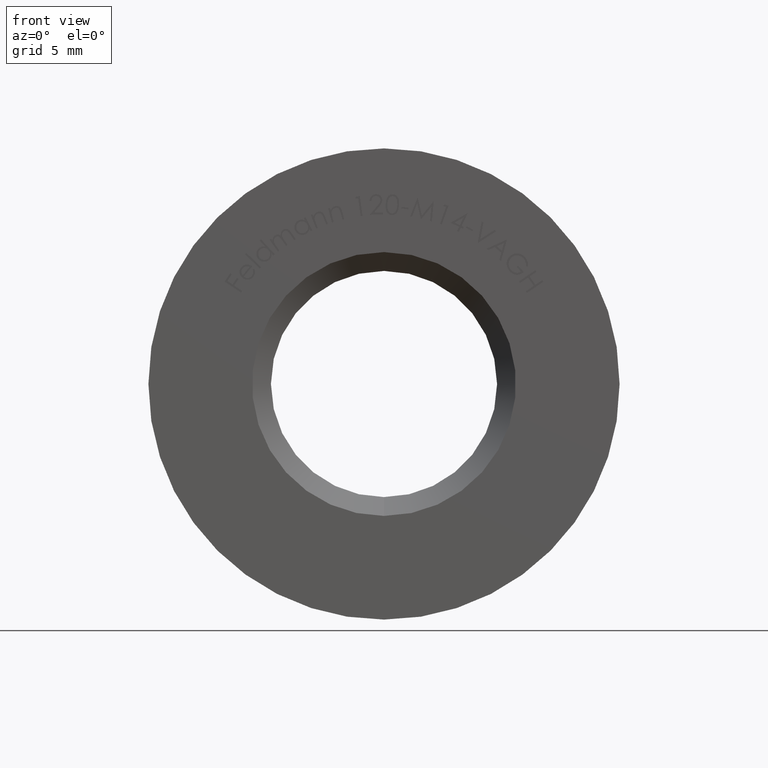
[diagram: clean part render]
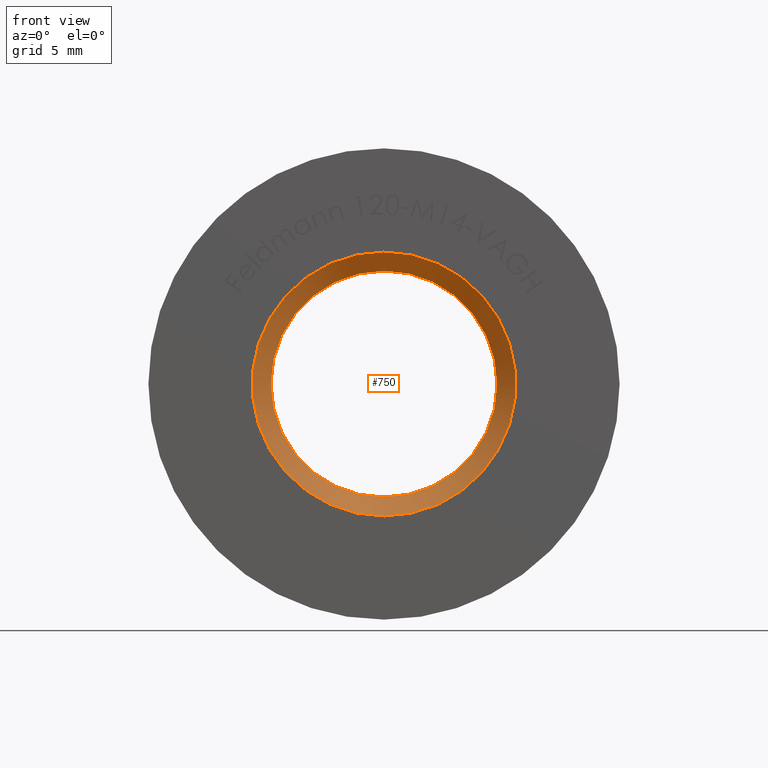
[diagram: same view with one face highlighted and labeled with its STEP entity id]
A machine part, front view. The second image highlights one B-rep face of the part: STEP entity #750.
In plain terms, the highlighted conical surface has half-angle 45 deg.
Its self-contained STEP definition (entity closure, byte-faithful):
#523 = EDGE_LOOP ( 'NONE', ( #4736 ) ) ;
#750 = ADVANCED_FACE ( 'NONE', ( #3011, #7392 ), #9226, .F. ) ;
#1232 = CARTESIAN_POINT ( 'NONE',  ( 0.0000000000000000000, 1.000000000000002700, 0.0000000000000000000 ) ) ;
#2032 = AXIS2_PLACEMENT_3D ( 'NONE', #2181, #3074, #2987 ) ;
#2181 = CARTESIAN_POINT ( 'NONE',  ( 0.0000000000000000000, -3.835467937799176700E-016, 0.0000000000000000000 ) ) ;
#2336 = VERTEX_POINT ( 'NONE', #4314 ) ;
#2987 = DIRECTION ( 'NONE',  ( 0.0000000000000000000, 0.0000000000000000000, -1.000000000000000000 ) ) ;
#3011 = FACE_OUTER_BOUND ( 'NONE', #9580, .T. ) ;
#3074 = DIRECTION ( 'NONE',  ( 0.0000000000000000000, 1.000000000000000000, 0.0000000000000000000 ) ) ;
#3120 = DIRECTION ( 'NONE',  ( 0.0000000000000000000, 0.0000000000000000000, -1.000000000000000000 ) ) ;
#3495 = ORIENTED_EDGE ( 'NONE', *, *, #11072, .F. ) ;
#4314 = CARTESIAN_POINT ( 'NONE',  ( 0.0000000000000000000, 1.000000000000002700, -5.999999999999996400 ) ) ;
#4321 = DIRECTION ( 'NONE',  ( 0.0000000000000000000, -1.000000000000000000, 0.0000000000000000000 ) ) ;
#4464 = AXIS2_PLACEMENT_3D ( 'NONE', #1232, #10173, #3120 ) ;
#4736 = ORIENTED_EDGE ( 'NONE', *, *, #11376, .F. ) ;
#5034 = CIRCLE ( 'NONE', #8885, 5.999999999999996400 ) ;
#7007 = CARTESIAN_POINT ( 'NONE',  ( 0.0000000000000000000, -3.835467937799176700E-016, -7.000000000000002700 ) ) ;
#7392 = FACE_BOUND ( 'NONE', #523, .T. ) ;
#8382 = VERTEX_POINT ( 'NONE', #7007 ) ;
#8684 = CIRCLE ( 'NONE', #2032, 7.000000000000002700 ) ;
#8741 = CARTESIAN_POINT ( 'NONE',  ( 0.0000000000000000000, 1.000000000000002700, 0.0000000000000000000 ) ) ;
#8885 = AXIS2_PLACEMENT_3D ( 'NONE', #8741, #4321, #10572 ) ;
#9226 = CONICAL_SURFACE ( 'NONE', #4464, 5.999999999999996400, 0.7853981633974500600 ) ;
#9580 = EDGE_LOOP ( 'NONE', ( #3495 ) ) ;
#10173 = DIRECTION ( 'NONE',  ( 0.0000000000000000000, -1.000000000000000000, 0.0000000000000000000 ) ) ;
#10572 = DIRECTION ( 'NONE',  ( 0.0000000000000000000, 0.0000000000000000000, -1.000000000000000000 ) ) ;
#11072 = EDGE_CURVE ( 'NONE', #8382, #8382, #8684, .T. ) ;
#11376 = EDGE_CURVE ( 'NONE', #2336, #2336, #5034, .T. ) ;